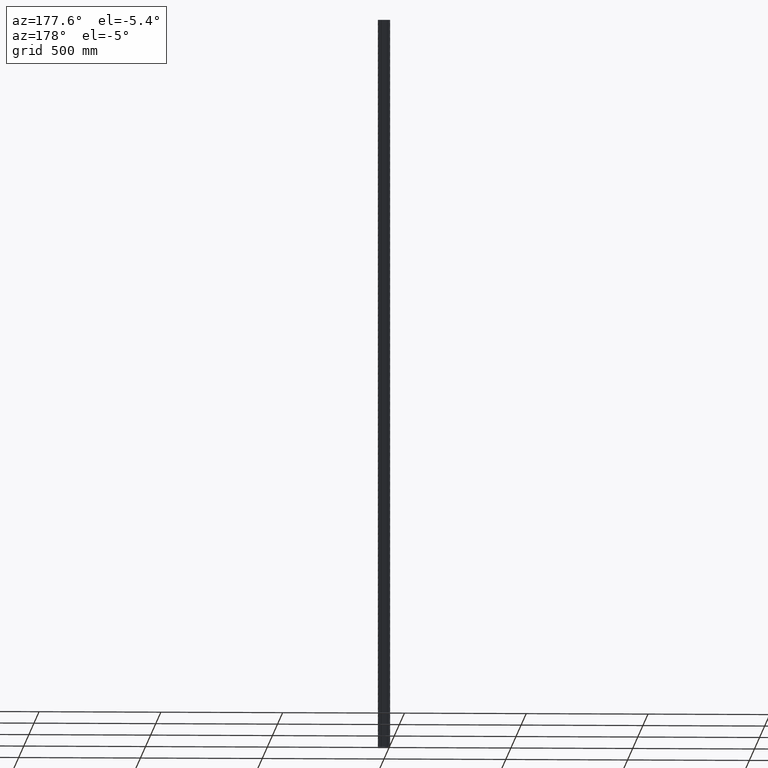
[diagram: clean part render]
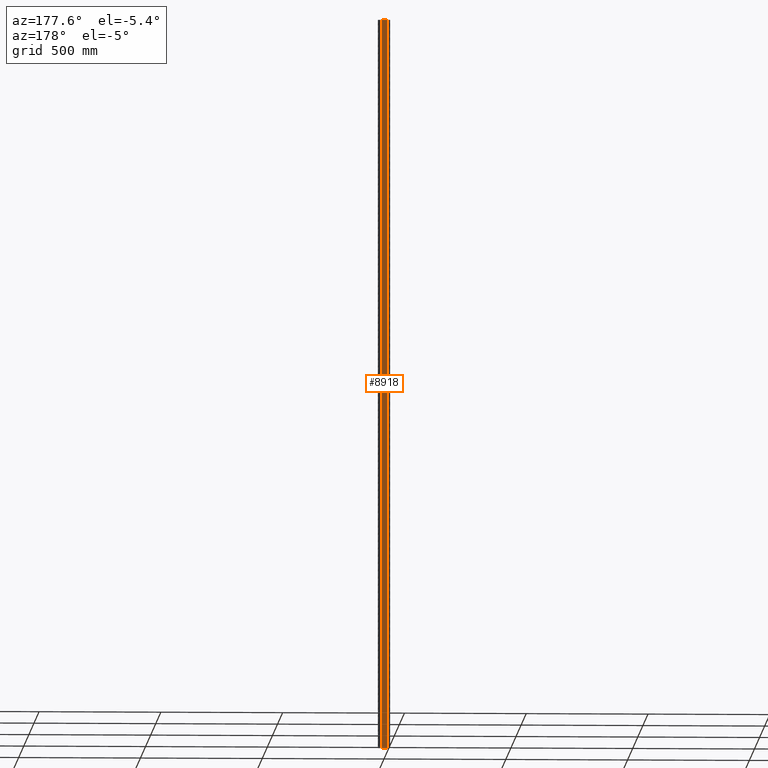
[diagram: same view with one face highlighted and labeled with its STEP entity id]
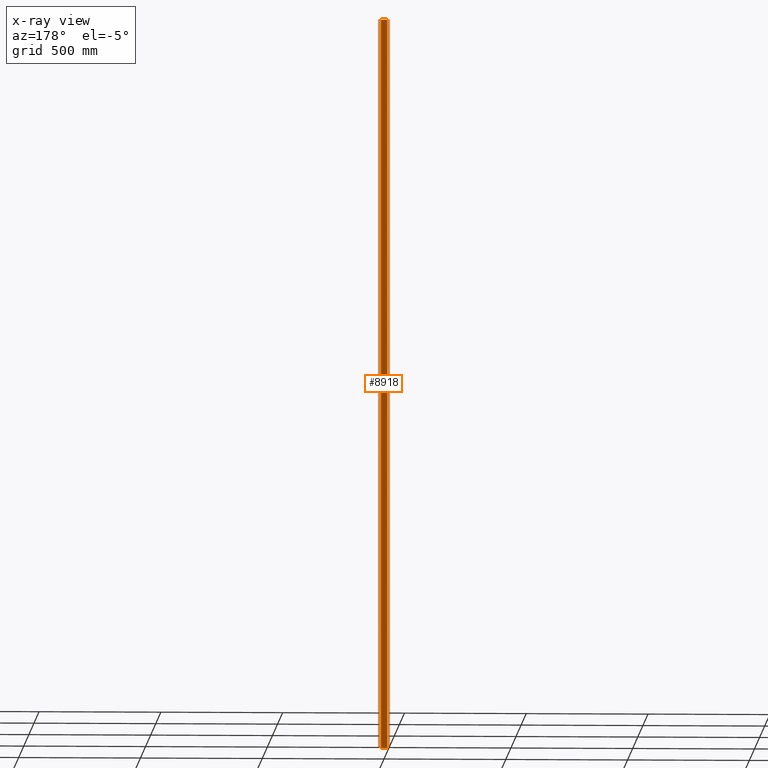
[diagram: x-ray of the same camera — body ghosted, the highlighted face saturated]
A machine part, auxiliary view. The second image highlights one B-rep face of the part: STEP entity #8918.
The next image is the same camera in x-ray: the body ghosted, the highlighted face saturated — about 0% of this face is hidden behind the body in this view.
In plain terms, the highlighted planar face has unit normal (-0, 1, 0).
Its self-contained STEP definition (entity closure, byte-faithful):
#156 = DIRECTION ( 'NONE',  ( -1.000000000000000000, -5.204170427930421283E-17, 0.000000000000000000 ) ) ;
#386 = FACE_OUTER_BOUND ( 'NONE', #10849, .T. ) ;
#393 = EDGE_CURVE ( 'NONE', #16198, #11886, #1446, .T. ) ;
#566 = VECTOR ( 'NONE', #15083, 1000.000000000000000 ) ;
#1255 = VECTOR ( 'NONE', #14448, 1000.000000000000000 ) ;
#1446 = LINE ( 'NONE', #2518, #13468 ) ;
#2284 = CARTESIAN_POINT ( 'NONE',  ( 12.00000000000000000, 5.000000000000002665, 1500.000000000000000 ) ) ;
#2366 = CARTESIAN_POINT ( 'NONE',  ( -25.00000000000000000, 5.000000000000000000, 1500.000000000000000 ) ) ;
#2518 = CARTESIAN_POINT ( 'NONE',  ( -25.00000000000000000, 5.000000000000000000, -1500.000000000000000 ) ) ;
#4061 = CARTESIAN_POINT ( 'NONE',  ( 12.00000000000000000, 5.000000000000002665, -1500.000000000000000 ) ) ;
#4231 = CARTESIAN_POINT ( 'NONE',  ( -25.00000000000000000, 5.000000000000000000, -1500.000000000000000 ) ) ;
#4389 = AXIS2_PLACEMENT_3D ( 'NONE', #4231, #11180, #156 ) ;
#4686 = CARTESIAN_POINT ( 'NONE',  ( 12.00000000000000000, 5.000000000000002665, -1500.000000000000000 ) ) ;
#6579 = DIRECTION ( 'NONE',  ( -1.000000000000000000, -5.204170427930421283E-17, -0.000000000000000000 ) ) ;
#6675 = VERTEX_POINT ( 'NONE', #12496 ) ;
#7168 = ORIENTED_EDGE ( 'NONE', *, *, #16828, .F. ) ;
#7351 = VECTOR ( 'NONE', #6579, 1000.000000000000000 ) ;
#8219 = CARTESIAN_POINT ( 'NONE',  ( -12.00000000000000000, 5.000000000000000888, -1500.000000000000000 ) ) ;
#8918 = ADVANCED_FACE ( 'NONE', ( #386 ), #12526, .T. ) ;
#10119 = ORIENTED_EDGE ( 'NONE', *, *, #17440, .T. ) ;
#10234 = ORIENTED_EDGE ( 'NONE', *, *, #15935, .F. ) ;
#10849 = EDGE_LOOP ( 'NONE', ( #10119, #7168, #10234, #17881 ) ) ;
#11180 = DIRECTION ( 'NONE',  ( -5.204170427930421283E-17, 1.000000000000000000, 0.000000000000000000 ) ) ;
#11886 = VERTEX_POINT ( 'NONE', #13959 ) ;
#12390 = LINE ( 'NONE', #4686, #1255 ) ;
#12496 = CARTESIAN_POINT ( 'NONE',  ( -12.00000000000000000, 5.000000000000000888, 1500.000000000000000 ) ) ;
#12526 = PLANE ( 'NONE',  #4389 ) ;
#13468 = VECTOR ( 'NONE', #16295, 1000.000000000000000 ) ;
#13959 = CARTESIAN_POINT ( 'NONE',  ( -12.00000000000000000, 5.000000000000000888, -1500.000000000000000 ) ) ;
#14448 = DIRECTION ( 'NONE',  ( -0.000000000000000000, -0.000000000000000000, 1.000000000000000000 ) ) ;
#15083 = DIRECTION ( 'NONE',  ( -0.000000000000000000, -0.000000000000000000, 1.000000000000000000 ) ) ;
#15935 = EDGE_CURVE ( 'NONE', #16198, #17308, #12390, .T. ) ;
#16198 = VERTEX_POINT ( 'NONE', #4061 ) ;
#16295 = DIRECTION ( 'NONE',  ( -1.000000000000000000, -5.204170427930421283E-17, -0.000000000000000000 ) ) ;
#16828 = EDGE_CURVE ( 'NONE', #17308, #6675, #17404, .T. ) ;
#17308 = VERTEX_POINT ( 'NONE', #2284 ) ;
#17404 = LINE ( 'NONE', #2366, #7351 ) ;
#17440 = EDGE_CURVE ( 'NONE', #11886, #6675, #17816, .T. ) ;
#17816 = LINE ( 'NONE', #8219, #566 ) ;
#17881 = ORIENTED_EDGE ( 'NONE', *, *, #393, .T. ) ;